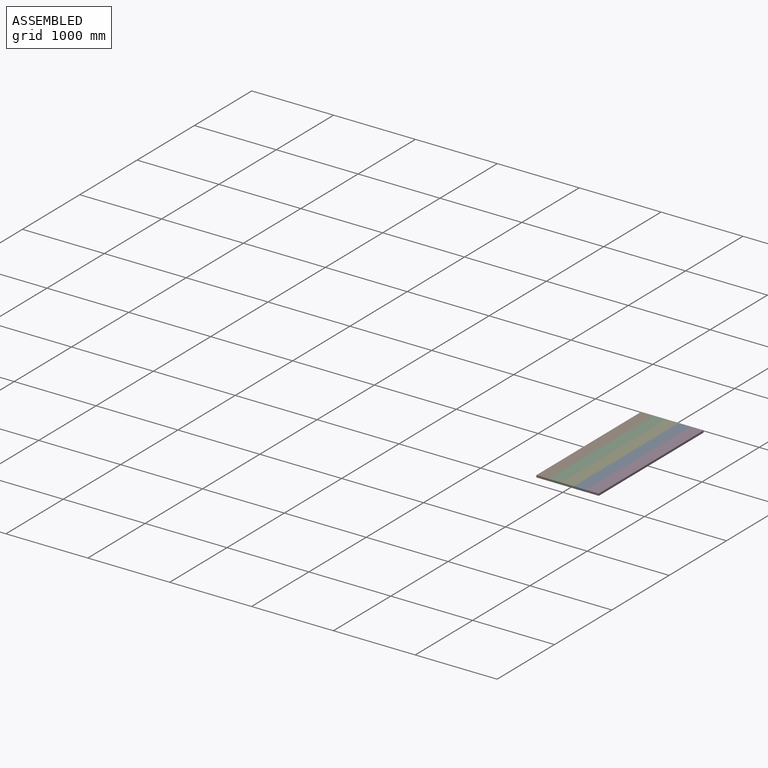
[diagram: assembled view]
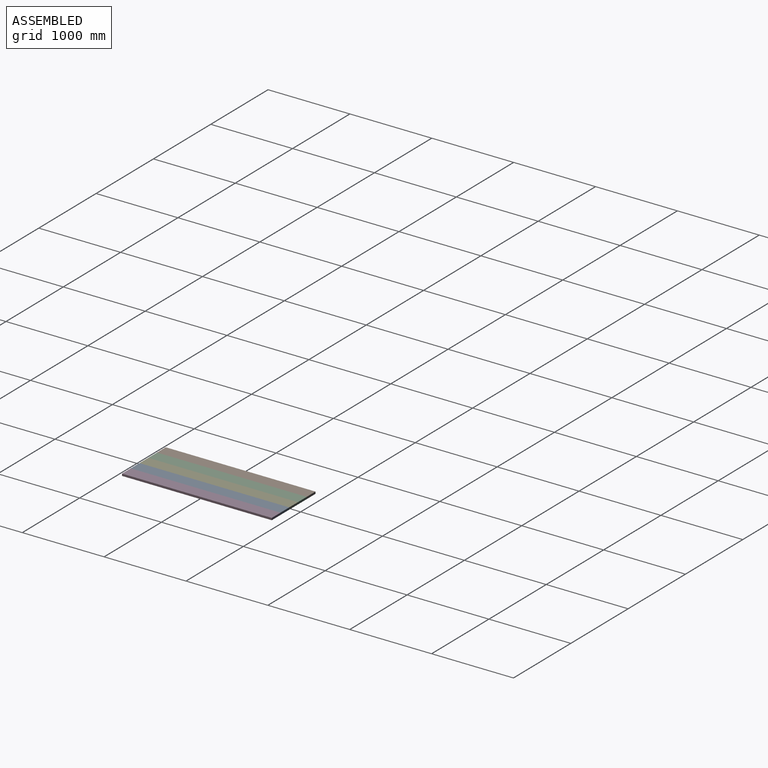
[diagram: assembled view, second angle]
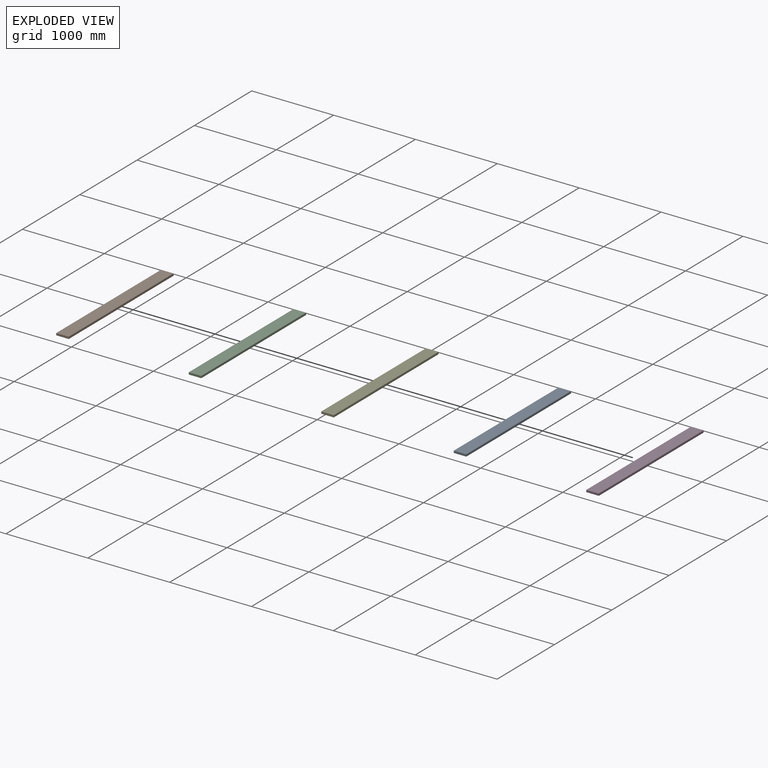
[diagram: exploded view]
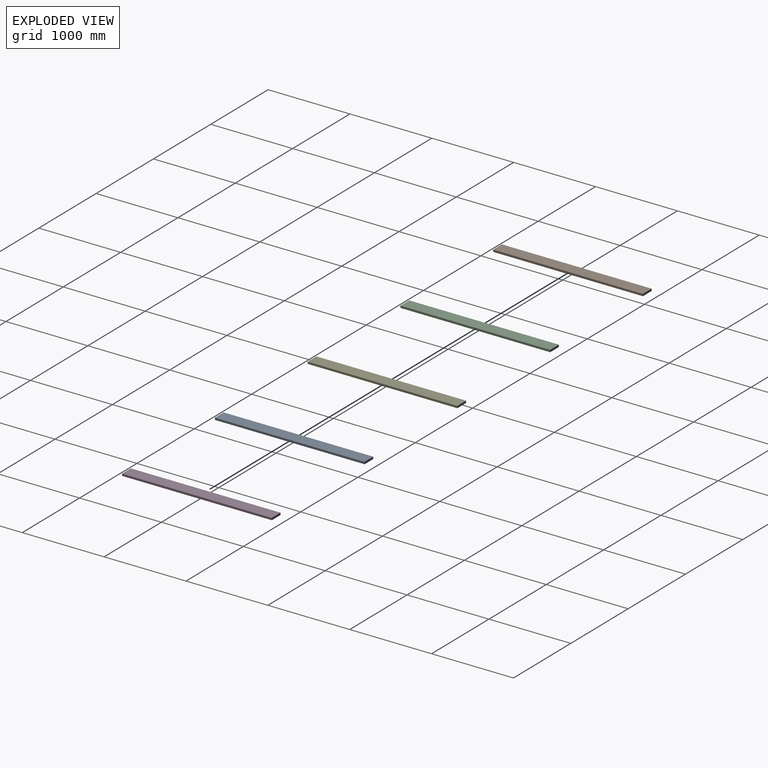
[diagram: exploded view, second angle]
ASSEMBLY  parts=5 mates=4
PART A: 6 faces, bbox 152.4x1828.8x25.4 mm
  f0: plane 152.4x25.4mm, normal (0,1,0), area 3871mm2, adj f1,f3,f4,f5
  f1: plane 1828.8x25.4mm, normal (-1,0,0), area 46451.5mm2, adj f0,f2,f4,f5
  f2: plane 152.4x25.4mm, normal (0,-1,0), area 3871mm2, adj f1,f3,f4,f5
  f3: plane 1828.8x25.4mm, normal (1,0,0), area 46451.5mm2, adj f0,f2,f4,f5
  f4: plane 1828.8x152.4mm, normal (0,0,1), area 278709.1mm2, adj f0,f1,f2,f3
  f5: plane 1828.8x152.4mm, normal (0,0,-1), area 278709.1mm2, adj f0,f1,f2,f3
PART B: same geometry as A
PART C: same geometry as A
PART D: same geometry as A
PART E: same geometry as A
PLACE A t=(152.4,0,0)mm
PLACE B t=(-304.8,0,0)mm
PLACE C t=(-152.4,0,0)mm
PLACE D t=(304.8,0,0)mm
PLACE E at identity fixed
MATE fastened E.f3 <-> A.f1  axis (1,0,0) through (76.2,-914.4,25.4)mm
MATE fastened C.f3 <-> E.f1  axis (1,0,0) through (-76.2,-914.4,25.4)mm
MATE fastened C.f1 <-> B.f3  axis (-1,0,0) through (-228.6,-914.4,25.4)mm
MATE fastened D.f1 <-> A.f3  axis (-1,0,0) through (228.6,-914.4,25.4)mm
